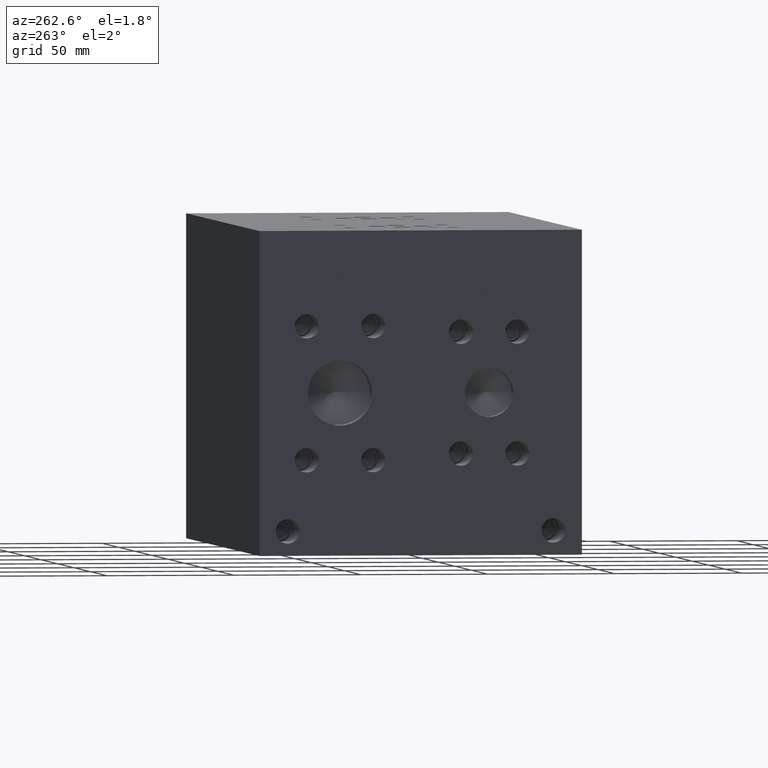
[diagram: clean part render]
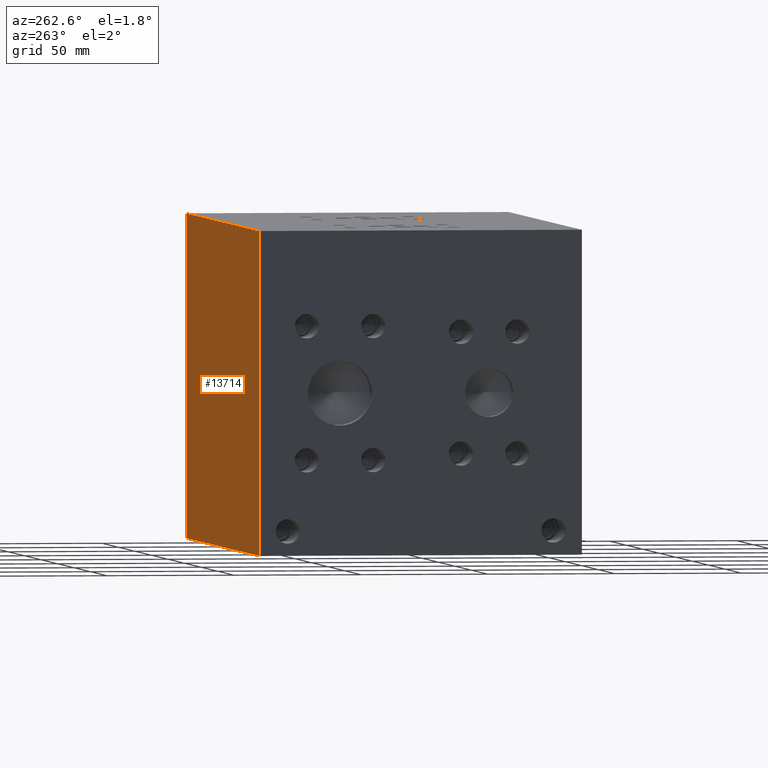
[diagram: same view with one face highlighted and labeled with its STEP entity id]
A machine part, auxiliary view. The second image highlights one B-rep face of the part: STEP entity #13714.
In plain terms, the highlighted planar face has unit normal (0, 1, 0).
Its self-contained STEP definition (entity closure, byte-faithful):
#1856=FACE_OUTER_BOUND('',#2701,.T.);
#2701=EDGE_LOOP('',(#12091,#12092,#12093,#12094));
#3541=LINE('',#21207,#4757);
#3577=LINE('',#21463,#4793);
#3938=LINE('',#23558,#5154);
#3939=LINE('',#23559,#5155);
#4757=VECTOR('',#16127,10.);
#4793=VECTOR('',#16231,10.);
#5154=VECTOR('',#17854,10.);
#5155=VECTOR('',#17855,10.);
#5897=VERTEX_POINT('',#21204);
#5898=VERTEX_POINT('',#21206);
#5955=VERTEX_POINT('',#21459);
#5956=VERTEX_POINT('',#21461);
#7549=EDGE_CURVE('',#5897,#5898,#3541,.T.);
#7625=EDGE_CURVE('',#5955,#5956,#3577,.T.);
#8377=EDGE_CURVE('',#5897,#5955,#3938,.T.);
#8378=EDGE_CURVE('',#5898,#5956,#3939,.T.);
#12091=ORIENTED_EDGE('',*,*,#8377,.T.);
#12092=ORIENTED_EDGE('',*,*,#7625,.T.);
#12093=ORIENTED_EDGE('',*,*,#8378,.F.);
#12094=ORIENTED_EDGE('',*,*,#7549,.F.);
#12543=PLANE('',#14699);
#13714=ADVANCED_FACE('',(#1856),#12543,.T.);
#14699=AXIS2_PLACEMENT_3D('',#23557,#17852,#17853);
#16127=DIRECTION('',(0.,0.,1.));
#16231=DIRECTION('',(0.,0.,1.));
#17852=DIRECTION('center_axis',(0.,1.,0.));
#17853=DIRECTION('ref_axis',(-1.,0.,0.));
#17854=DIRECTION('',(-1.,0.,0.));
#17855=DIRECTION('',(-1.,0.,0.));
#21204=CARTESIAN_POINT('',(222.25,127.,0.));
#21206=CARTESIAN_POINT('',(222.25,127.,127.));
#21207=CARTESIAN_POINT('',(222.25,127.,0.));
#21459=CARTESIAN_POINT('',(0.,127.,0.));
#21461=CARTESIAN_POINT('',(0.,127.,127.));
#21463=CARTESIAN_POINT('',(0.,127.,0.));
#23557=CARTESIAN_POINT('Origin',(222.25,127.,0.));
#23558=CARTESIAN_POINT('',(222.25,127.,0.));
#23559=CARTESIAN_POINT('',(222.25,127.,127.));